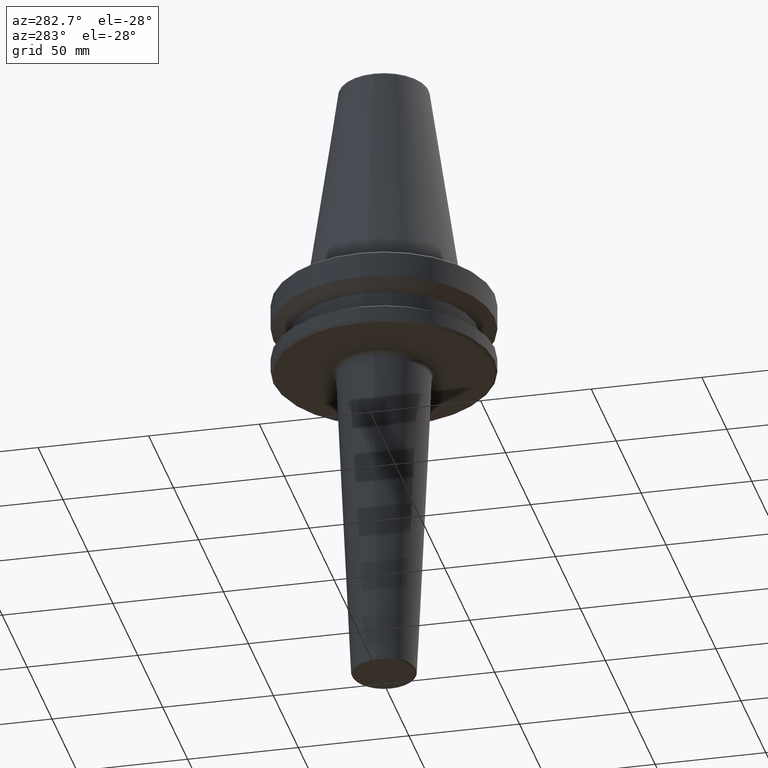
[diagram: clean part render]
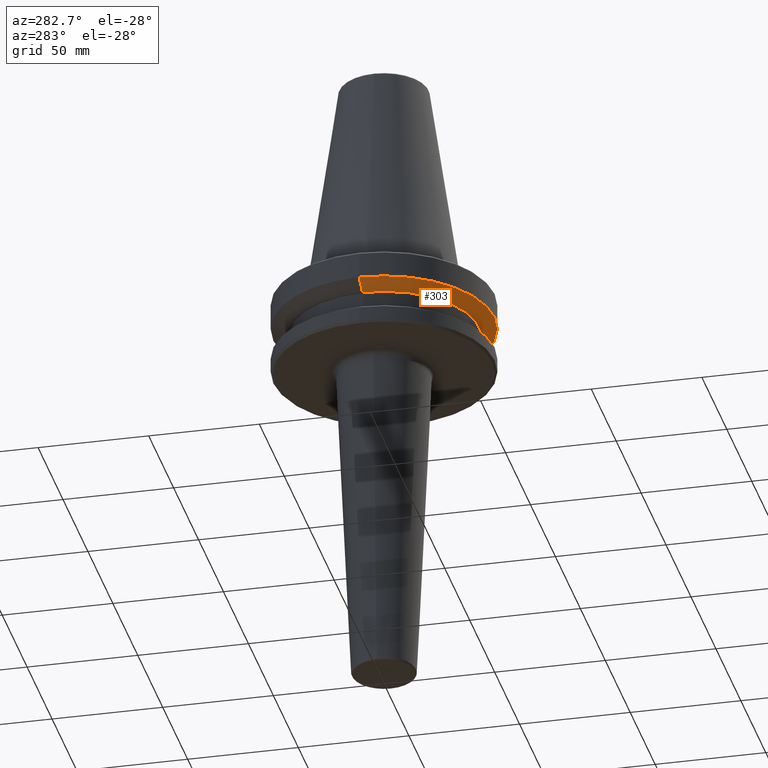
[diagram: same view with one face highlighted and labeled with its STEP entity id]
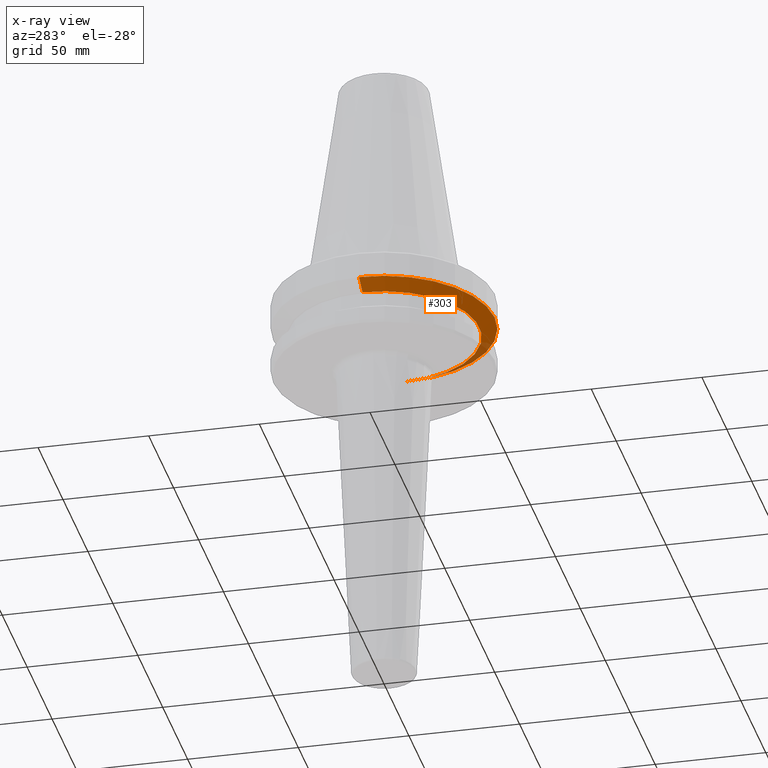
[diagram: x-ray of the same camera — body ghosted, the highlighted face saturated]
A machine part, auxiliary view. The second image highlights one B-rep face of the part: STEP entity #303.
The next image is the same camera in x-ray: the body ghosted, the highlighted face saturated — about 9% of this face is hidden behind the body in this view.
In plain terms, the highlighted conical surface has half-angle 60 deg.
Its self-contained STEP definition (entity closure, byte-faithful):
#14 = DIRECTION ( 'NONE',  ( 1.000000000000000000, 0.0000000000000000000, 0.0000000000000000000 ) ) ;
#57 = DIRECTION ( 'NONE',  ( 1.000000000000000000, 0.0000000000000000000, 0.0000000000000000000 ) ) ;
#68 = CONICAL_SURFACE ( 'NONE', #185, 43.07217782649103600, 1.047197551196598100 ) ;
#96 = DIRECTION ( 'NONE',  ( -0.8660254037844388200, 1.060575238724907200E-016, 0.4999999999999997200 ) ) ;
#102 = DIRECTION ( 'NONE',  ( 1.000000000000000000, 0.0000000000000000000, 0.0000000000000000000 ) ) ;
#139 = ORIENTED_EDGE ( 'NONE', *, *, #751, .F. ) ;
#184 = VERTEX_POINT ( 'NONE', #901 ) ;
#185 = AXIS2_PLACEMENT_3D ( 'NONE', #748, #514, #14 ) ;
#191 = AXIS2_PLACEMENT_3D ( 'NONE', #640, #342, #102 ) ;
#211 = CIRCLE ( 'NONE', #191, 50.00000000000000000 ) ;
#218 = CARTESIAN_POINT ( 'NONE',  ( 43.07217782649103600, 0.0000000000000000000, -19.70000000000001000 ) ) ;
#223 = LINE ( 'NONE', #847, #628 ) ;
#252 = CARTESIAN_POINT ( 'NONE',  ( 0.0000000000000000000, 0.0000000000000000000, -19.70000000000001000 ) ) ;
#259 = VERTEX_POINT ( 'NONE', #323 ) ;
#260 = ORIENTED_EDGE ( 'NONE', *, *, #397, .T. ) ;
#303 = ADVANCED_FACE ( 'NONE', ( #634 ), #68, .T. ) ;
#323 = CARTESIAN_POINT ( 'NONE',  ( -43.07217782649103600, 5.699027233244276000E-015, -19.70000000000001000 ) ) ;
#342 = DIRECTION ( 'NONE',  ( -0.0000000000000000000, -0.0000000000000000000, 1.000000000000000000 ) ) ;
#380 = CIRCLE ( 'NONE', #442, 43.07217782649103600 ) ;
#397 = EDGE_CURVE ( 'NONE', #772, #951, #223, .T. ) ;
#405 = LINE ( 'NONE', #496, #860 ) ;
#442 = AXIS2_PLACEMENT_3D ( 'NONE', #252, #866, #57 ) ;
#496 = CARTESIAN_POINT ( 'NONE',  ( -43.07217782649103600, 5.274820470751785100E-015, -19.70000000000001000 ) ) ;
#514 = DIRECTION ( 'NONE',  ( -0.0000000000000000000, -0.0000000000000000000, 1.000000000000000000 ) ) ;
#564 = EDGE_CURVE ( 'NONE', #184, #951, #211, .T. ) ;
#628 = VECTOR ( 'NONE', #750, 1000.000000000000000 ) ;
#634 = FACE_OUTER_BOUND ( 'NONE', #954, .T. ) ;
#640 = CARTESIAN_POINT ( 'NONE',  ( 0.0000000000000000000, 0.0000000000000000000, -15.70022000322675400 ) ) ;
#698 = CARTESIAN_POINT ( 'NONE',  ( 50.00000000000000000, 0.0000000000000000000, -15.70022000322675400 ) ) ;
#745 = EDGE_CURVE ( 'NONE', #259, #772, #380, .T. ) ;
#748 = CARTESIAN_POINT ( 'NONE',  ( 0.0000000000000000000, 0.0000000000000000000, -19.70000000000001000 ) ) ;
#750 = DIRECTION ( 'NONE',  ( 0.8660254037844388200, 0.0000000000000000000, 0.4999999999999997200 ) ) ;
#751 = EDGE_CURVE ( 'NONE', #259, #184, #405, .T. ) ;
#772 = VERTEX_POINT ( 'NONE', #218 ) ;
#796 = ORIENTED_EDGE ( 'NONE', *, *, #745, .T. ) ;
#801 = ORIENTED_EDGE ( 'NONE', *, *, #564, .F. ) ;
#847 = CARTESIAN_POINT ( 'NONE',  ( 43.07217782649103600, 0.0000000000000000000, -19.70000000000001000 ) ) ;
#860 = VECTOR ( 'NONE', #96, 1000.000000000000000 ) ;
#866 = DIRECTION ( 'NONE',  ( -0.0000000000000000000, -0.0000000000000000000, 1.000000000000000000 ) ) ;
#901 = CARTESIAN_POINT ( 'NONE',  ( -50.00000000000000000, 6.123233995736766900E-015, -15.70022000322675400 ) ) ;
#951 = VERTEX_POINT ( 'NONE', #698 ) ;
#954 = EDGE_LOOP ( 'NONE', ( #139, #796, #260, #801 ) ) ;